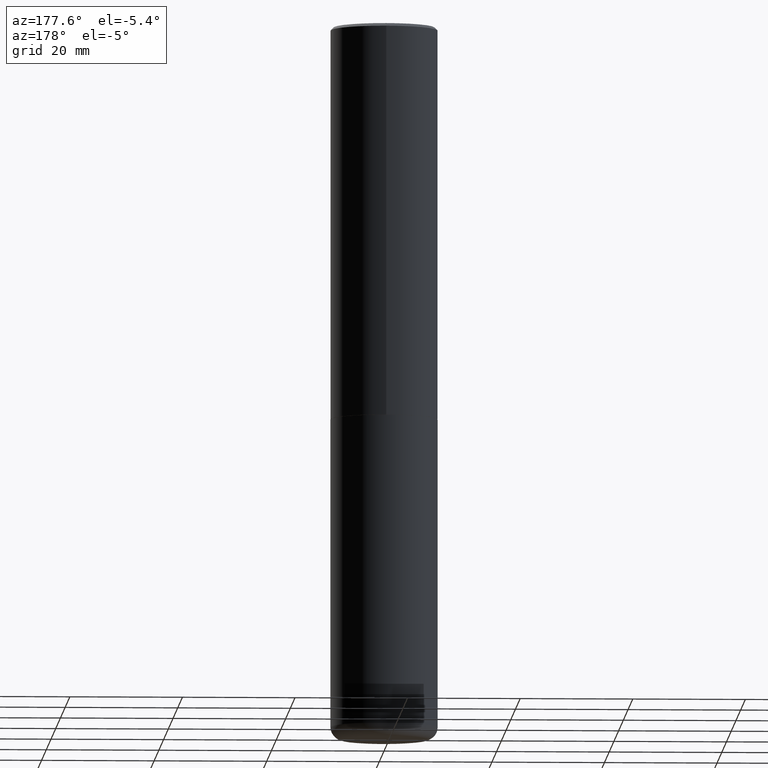
[diagram: clean part render]
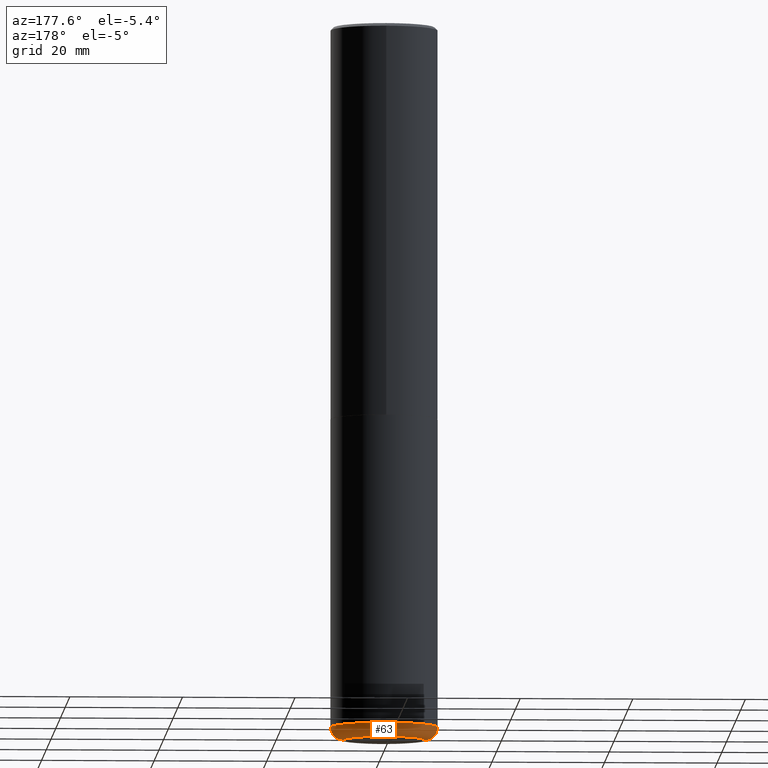
[diagram: same view with one face highlighted and labeled with its STEP entity id]
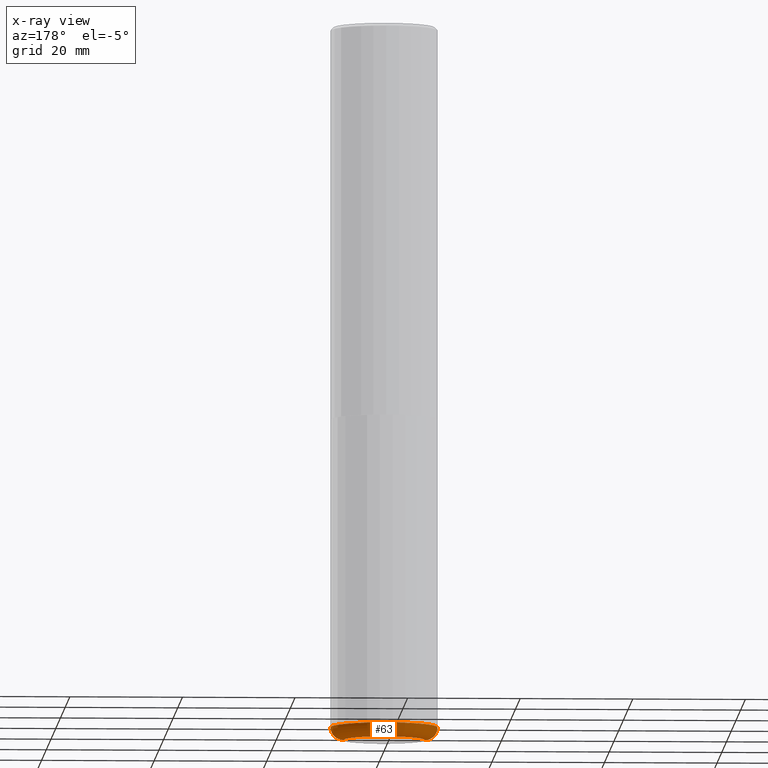
[diagram: x-ray of the same camera — body ghosted, the highlighted face saturated]
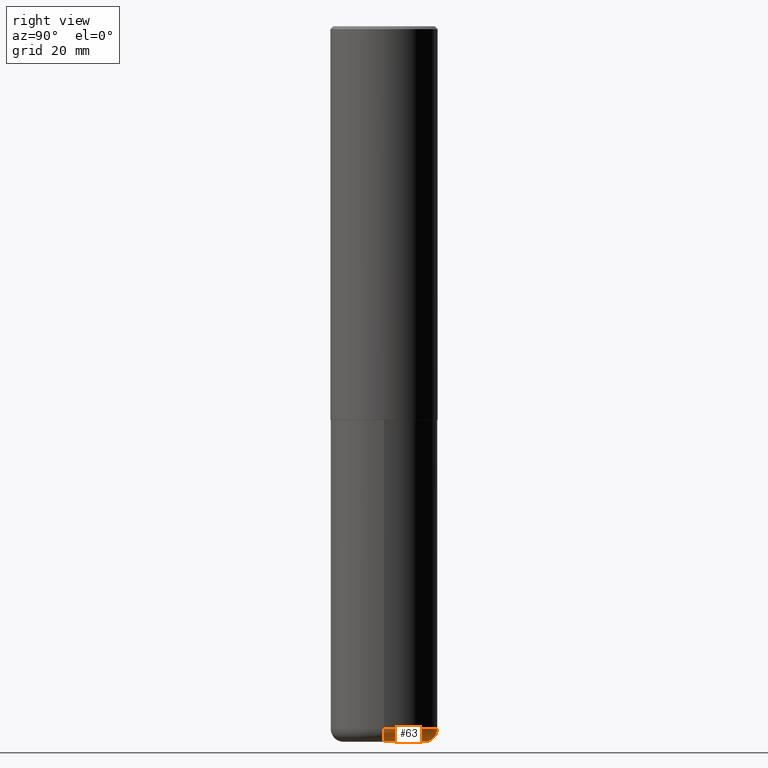
[diagram: same view with one face highlighted and labeled with its STEP entity id]
A machine part, auxiliary view. The second image highlights one B-rep face of the part: STEP entity #63.
The next image is the same camera in x-ray: the body ghosted, the highlighted face saturated — about 0% of this face is hidden behind the body in this view.
A second angle (right view) of the same face is appended — the face is thin or edge-on in the first view.
In plain terms, the highlighted toroidal blend (fillet) surface has major radius 7.239 mm and minor (blend) radius 2.286 mm.
Its self-contained STEP definition (entity closure, byte-faithful):
#9 = EDGE_CURVE ( 'NONE', #144, #190, #141, .T. ) ;
#16 = DIRECTION ( 'NONE',  ( 1.000000000000000000, -6.982962677686266711E-15, 0.000000000000000000 ) ) ;
#33 = DIRECTION ( 'NONE',  ( 7.105427357601001859E-15, 1.000000000000000000, -3.491481338843145583E-15 ) ) ;
#42 = CARTESIAN_POINT ( 'NONE',  ( -0.3749999999999999445, -1.447863811461947092E-14, -4.910000000000000142 ) ) ;
#47 = VERTEX_POINT ( 'NONE', #165 ) ;
#52 = CARTESIAN_POINT ( 'NONE',  ( 1.222734403092568523E-28, -1.745740669421572989E-14, -5.000000000000000000 ) ) ;
#59 = AXIS2_PLACEMENT_3D ( 'NONE', #311, #150, #380 ) ;
#63 = ADVANCED_FACE ( 'NONE', ( #66 ), #220, .T. ) ;
#65 = AXIS2_PLACEMENT_3D ( 'NONE', #109, #399, #138 ) ;
#66 = FACE_OUTER_BOUND ( 'NONE', #349, .T. ) ;
#74 = CARTESIAN_POINT ( 'NONE',  ( 0.2850000000000000311, -1.944755105735631653E-14, -5.000000000000000000 ) ) ;
#83 = DIRECTION ( 'NONE',  ( -2.445468806185136597E-29, 3.491481338843145583E-15, 1.000000000000000000 ) ) ;
#94 = CIRCLE ( 'NONE', #203, 0.2850000000000000311 ) ;
#109 = CARTESIAN_POINT ( 'NONE',  ( 0.2850000000000000311, -1.913331773686043011E-14, -4.910000000000000142 ) ) ;
#132 = CARTESIAN_POINT ( 'NONE',  ( -0.2850000000000000311, -1.495549900595945556E-14, -5.000000000000000000 ) ) ;
#133 = CIRCLE ( 'NONE', #59, 0.3749999999999999445 ) ;
#138 = DIRECTION ( 'NONE',  ( 1.000000000000000000, -6.982962677686273810E-15, 0.000000000000000000 ) ) ;
#139 = ORIENTED_EDGE ( 'NONE', *, *, #371, .F. ) ;
#141 = CIRCLE ( 'NONE', #162, 0.08999999999999992728 ) ;
#144 = VERTEX_POINT ( 'NONE', #132 ) ;
#150 = DIRECTION ( 'NONE',  ( -2.445468806185136597E-29, 3.491481338843145583E-15, 1.000000000000000000 ) ) ;
#162 = AXIS2_PLACEMENT_3D ( 'NONE', #356, #33, #361 ) ;
#165 = CARTESIAN_POINT ( 'NONE',  ( 0.3749999999999999445, -1.976178437785219664E-14, -4.910000000000000142 ) ) ;
#187 = ORIENTED_EDGE ( 'NONE', *, *, #201, .F. ) ;
#190 = VERTEX_POINT ( 'NONE', #42 ) ;
#198 = DIRECTION ( 'NONE',  ( -2.445468806185136597E-29, 3.491481338843145583E-15, 1.000000000000000000 ) ) ;
#201 = EDGE_CURVE ( 'NONE', #314, #47, #211, .T. ) ;
#203 = AXIS2_PLACEMENT_3D ( 'NONE', #52, #83, #16 ) ;
#211 = CIRCLE ( 'NONE', #65, 0.08999999999999992728 ) ;
#220 = TOROIDAL_SURFACE ( 'NONE', #409, 0.2850000000000000311, 0.08999999999999989952 ) ;
#311 = CARTESIAN_POINT ( 'NONE',  ( 1.200725183836902132E-28, -1.714317337371984662E-14, -4.910000000000000142 ) ) ;
#314 = VERTEX_POINT ( 'NONE', #74 ) ;
#326 = DIRECTION ( 'NONE',  ( 1.000000000000000000, -6.982962677686269077E-15, 4.883557194083113462E-29 ) ) ;
#343 = ORIENTED_EDGE ( 'NONE', *, *, #9, .T. ) ;
#349 = EDGE_LOOP ( 'NONE', ( #414, #343, #139, #187 ) ) ;
#356 = CARTESIAN_POINT ( 'NONE',  ( -0.2850000000000000311, -1.511812657680356008E-14, -4.910000000000000142 ) ) ;
#361 = DIRECTION ( 'NONE',  ( -1.000000000000000000, 7.105427357600996337E-15, 0.000000000000000000 ) ) ;
#371 = EDGE_CURVE ( 'NONE', #47, #190, #133, .T. ) ;
#380 = DIRECTION ( 'NONE',  ( 1.000000000000000000, -6.982962677686269077E-15, 0.000000000000000000 ) ) ;
#389 = CARTESIAN_POINT ( 'NONE',  ( 1.200725183836902132E-28, -1.714317337371984662E-14, -4.910000000000000142 ) ) ;
#399 = DIRECTION ( 'NONE',  ( -6.982962677686266711E-15, -1.000000000000000000, 3.491481338843145583E-15 ) ) ;
#409 = AXIS2_PLACEMENT_3D ( 'NONE', #389, #198, #326 ) ;
#413 = EDGE_CURVE ( 'NONE', #314, #144, #94, .T. ) ;
#414 = ORIENTED_EDGE ( 'NONE', *, *, #413, .T. ) ;